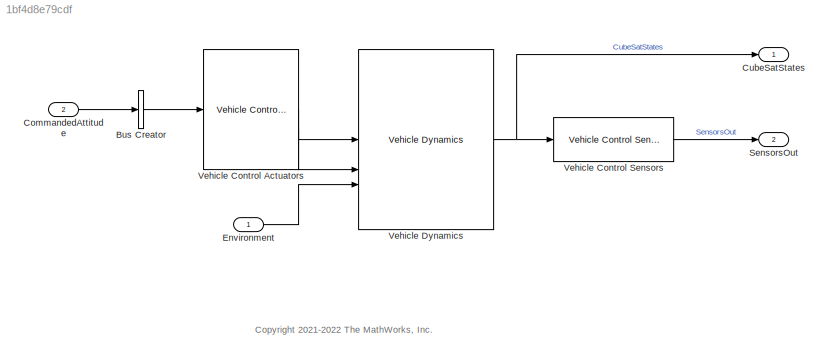
MODEL slx_1bf4d8e79cdf
KIND model
CONFIG AbsTol = 1e-5
CONFIG EnableMultiTasking = on
CONFIG FixedStep = CubeSatTimeStep
CONFIG MaxStep = auto
CONFIG MinStep = auto
CONFIG RelTol = 1e-5
CONFIG SampleTimeConstraint = Unconstrained
CONFIG SolverName = ode23t
CONFIG StartTime = 0.0
CONFIG StopTime = 86400
BLOCK [BusCreator] Bus Creator
  DisplayOption = bar
  InheritFromInputs = off
  Inputs = 1
  OutDataTypeStr = Bus: FCSOutBus
BLOCK [Inport] CommandedAttitude
  OutDataTypeStr = Bus: ACSOutBus
  Port = 2
BLOCK [Outport] CubeSatStates
  OutDataTypeStr = Bus: StatesOutBus
  SampleTime = 0
BLOCK [Inport] Environment
  OutDataTypeStr = Bus: EnvBus
BLOCK [Outport] SensorsOut
  BusOutputAsStruct = on
  OutDataTypeStr = Bus: StatesOutBus
  Port = 2
  SampleTime = CubeSatTimeStep
BLOCK [Reference] Vehicle Control Actuators  REF=asbCubeSatActuatorsLib/Vehicle Control
Actuators
  SourceBlock = asbCubeSatActuatorsLib/Vehicle Control\nActuators
  SourceType = SubSystem
BLOCK [Reference] Vehicle Control Sensors  REF=asbCubeSatSensorsLib/Vehicle Control Sensors
  SourceBlock = asbCubeSatSensorsLib/Vehicle Control Sensors
  SourceType = SubSystem
BLOCK [Reference] Vehicle Dynamics  REF=asbCubeSatDynamicsLib/Vehicle Dynamics
  SourceBlock = asbCubeSatDynamicsLib/Vehicle Dynamics
  SourceType = SubSystem
ANNOTATION (root): <copyright redacted>
LINE Bus Creator:1 -> Vehicle Control Actuators:1
LINE CommandedAttitude:1 -> Bus Creator:1
LINE Environment:1 -> Vehicle Dynamics:3
LINE Vehicle Control Actuators:1 -> Vehicle Dynamics:1
LINE Vehicle Control Actuators:2 -> Vehicle Dynamics:2
LINE Vehicle Control Sensors:1 -> SensorsOut:1
NET Vehicle Dynamics:1 -> CubeSatStates:1, Vehicle Control Sensors:1
note: NET lines group one-source signal fan-out (src -> all destinations, sorted); 1:1 wires keep LINE
